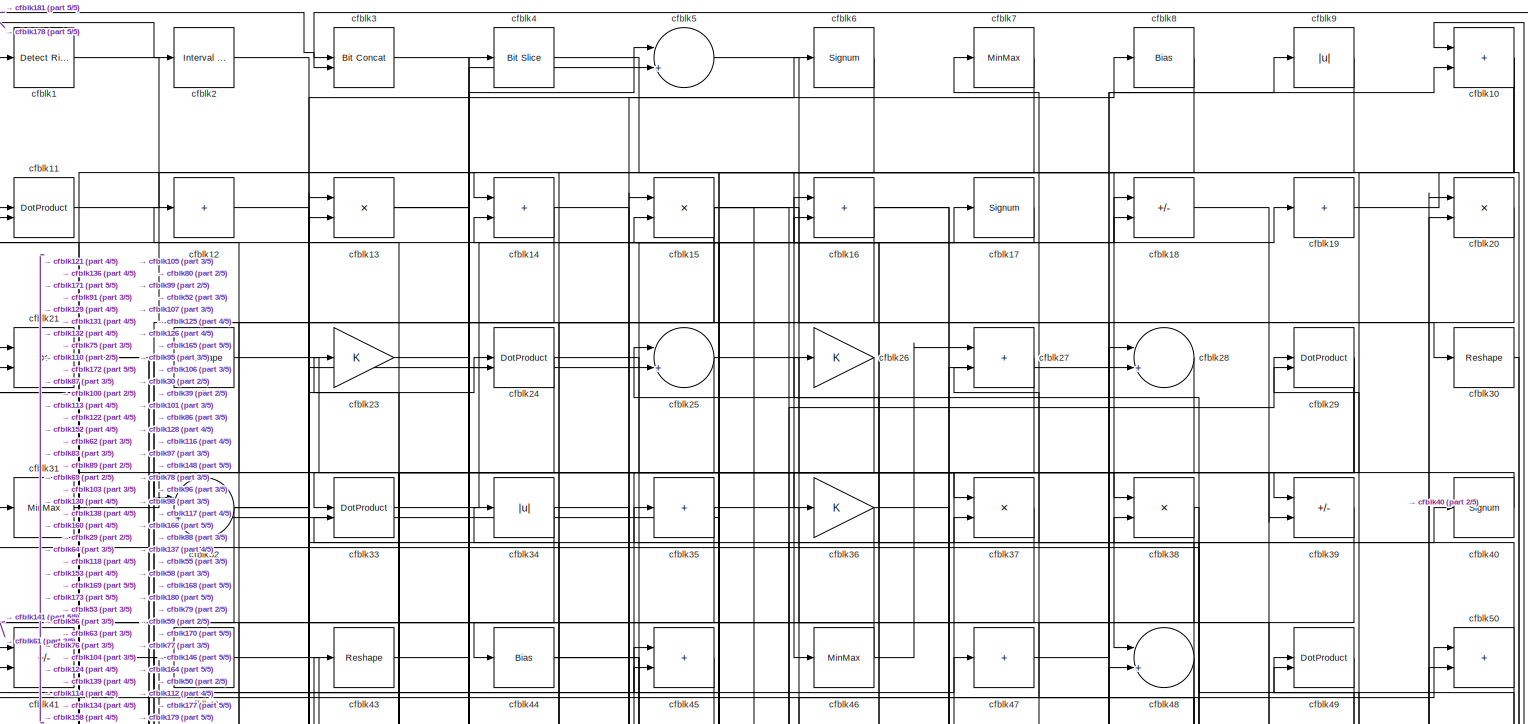
[diagram: root canvas - part 1/5, full width, top band]
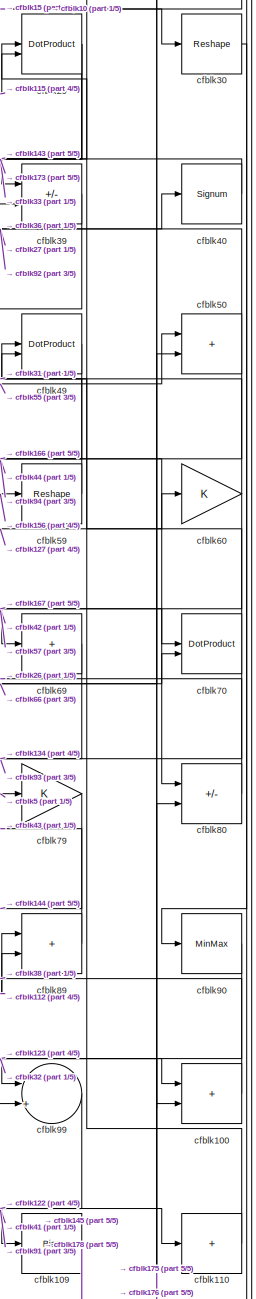
[diagram: root canvas - part 2/5, middle right region]
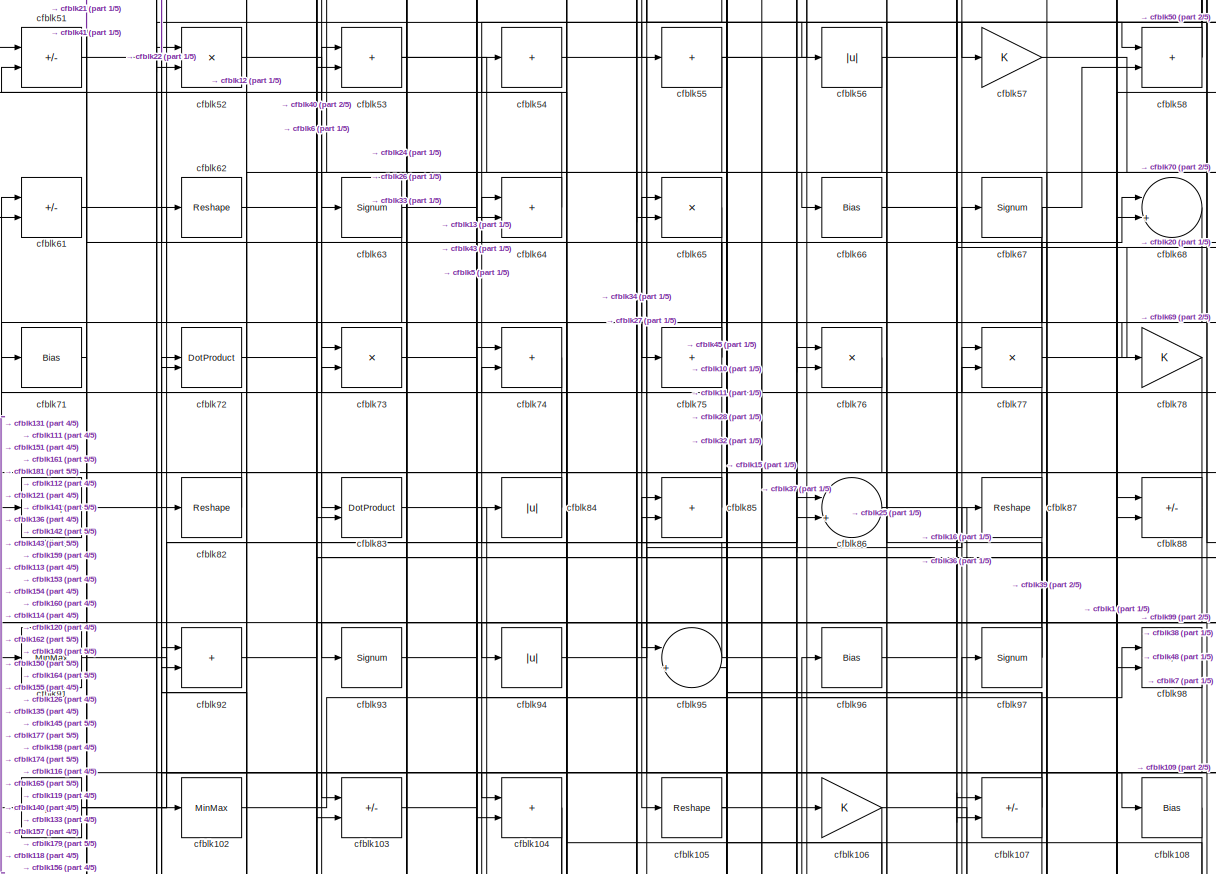
[diagram: root canvas - part 3/5, full width, middle band]
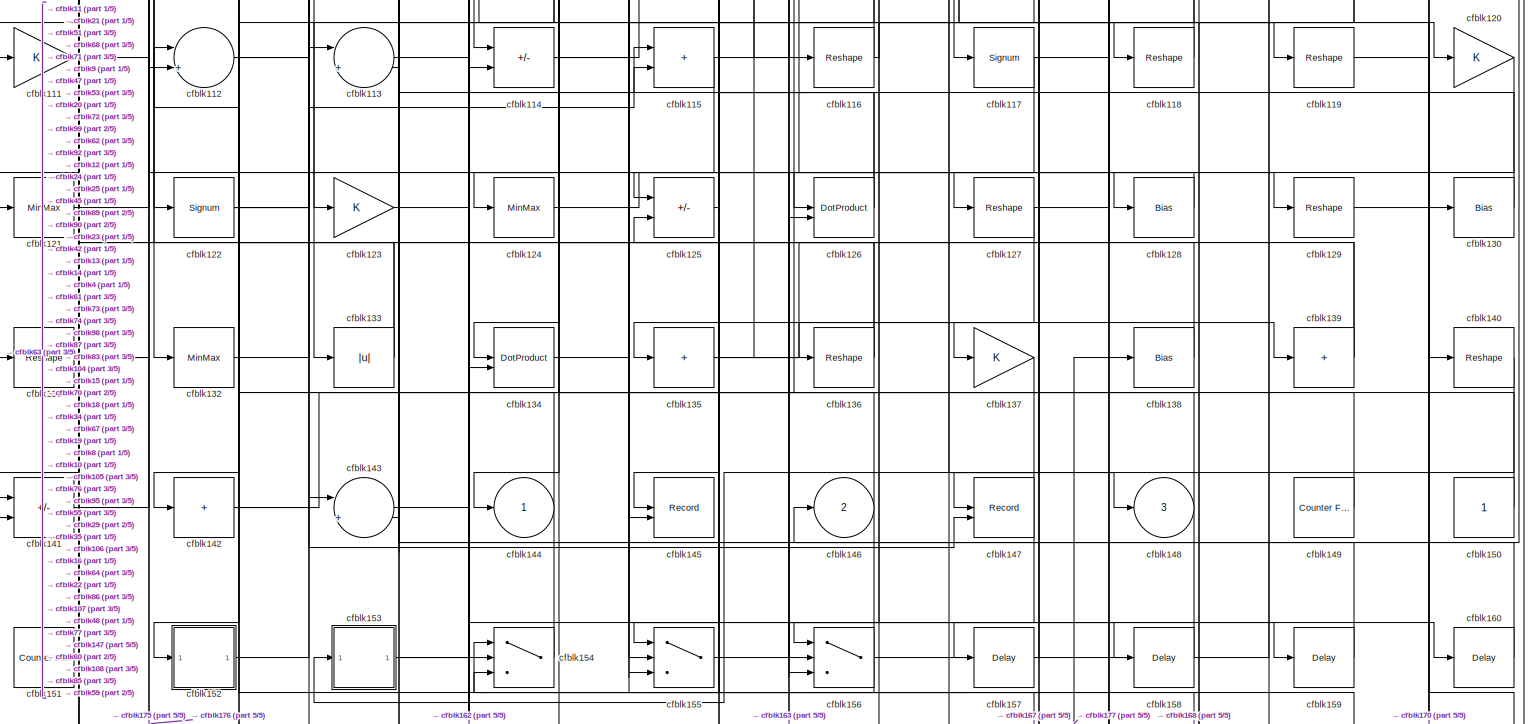
[diagram: root canvas - part 4/5, full width, bottom band]
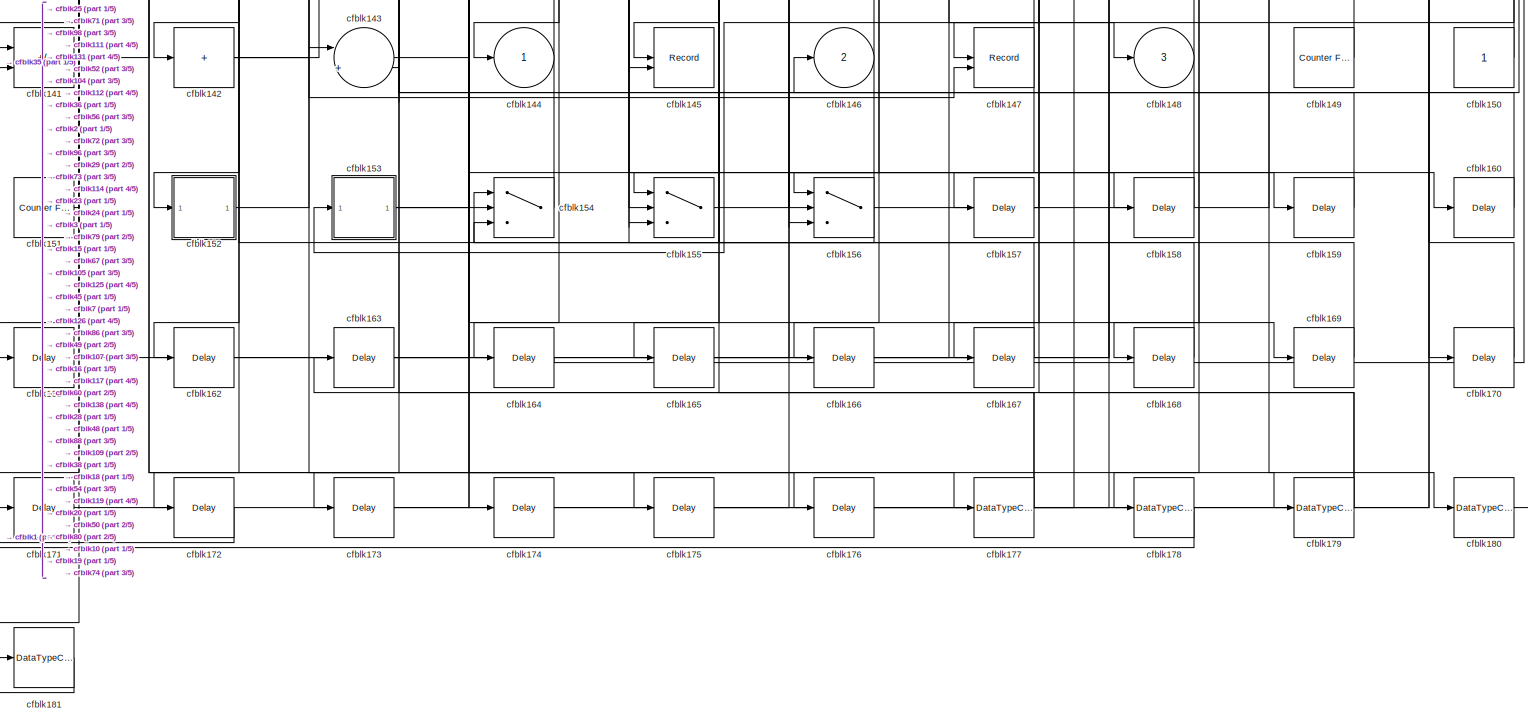
[diagram: root canvas - part 5/5, full width, bottom band]
MODEL slx_4ff851cc474c
KIND model
CONFIG AbsTol = auto
CONFIG EnableMultiTasking = off
CONFIG FixedStep = auto
CONFIG MaxStep = auto
CONFIG MinStep = auto
CONFIG RelTol = 1e-3
CONFIG SampleTimeConstraint = Unconstrained
CONFIG SolverName = VariableStepAuto
CONFIG StartTime = 0.0
CONFIG StopTime = 10.0
BLOCK [Reference] cfblk1  REF=hdlsllib/Logic and Bit
Operations/Detect Rise
Positive
  SourceBlock = hdlsllib/Logic and Bit\nOperations/Detect Rise\nPositive
  SourceType = Detect Rise Positive
BLOCK [Sum] cfblk10
  IconShape = rectangular
BLOCK [Sum] cfblk100
  IconShape = rectangular
BLOCK [Signum] cfblk101
BLOCK [MinMax] cfblk102
BLOCK [Sum] cfblk103
  IconShape = rectangular
  Inputs = +-
BLOCK [Sum] cfblk104
  IconShape = rectangular
BLOCK [Reshape] cfblk105
BLOCK [Gain] cfblk106
BLOCK [Sum] cfblk107
  IconShape = rectangular
  Inputs = +-
BLOCK [Bias] cfblk108
  Bias = 0.0
  SaturateOnIntegerOverflow = off
BLOCK [Bias] cfblk109
  Bias = 0.0
  SaturateOnIntegerOverflow = off
BLOCK [DotProduct] cfblk11
  OutDataTypeStr = Inherit: Inherit via internal rule
BLOCK [Sum] cfblk110
  IconShape = rectangular
  Inputs = +
BLOCK [Gain] cfblk111
BLOCK [Sum] cfblk112
  Inputs = |++
BLOCK [Sum] cfblk113
  Inputs = |++
BLOCK [Sum] cfblk114
  IconShape = rectangular
  Inputs = +-
BLOCK [Sum] cfblk115
  IconShape = rectangular
BLOCK [Reshape] cfblk116
BLOCK [Signum] cfblk117
BLOCK [Reshape] cfblk118
BLOCK [Reshape] cfblk119
BLOCK [Sum] cfblk12
  IconShape = rectangular
  Inputs = +
BLOCK [Gain] cfblk120
BLOCK [MinMax] cfblk121
BLOCK [Signum] cfblk122
BLOCK [Gain] cfblk123
BLOCK [MinMax] cfblk124
BLOCK [Sum] cfblk125
  IconShape = rectangular
  Inputs = +-
BLOCK [DotProduct] cfblk126
  OutDataTypeStr = Inherit: Inherit via internal rule
BLOCK [Reshape] cfblk127
BLOCK [Bias] cfblk128
  Bias = 0.0
  SaturateOnIntegerOverflow = off
BLOCK [Reshape] cfblk129
BLOCK [Product] cfblk13
  Inputs = */
  RndMeth = Zero
  SaturateOnIntegerOverflow = on
BLOCK [Bias] cfblk130
  Bias = 0.0
  SaturateOnIntegerOverflow = off
BLOCK [Reshape] cfblk131
BLOCK [MinMax] cfblk132
BLOCK [Abs] cfblk133
  SaturateOnIntegerOverflow = off
BLOCK [DotProduct] cfblk134
  OutDataTypeStr = Inherit: Inherit via internal rule
BLOCK [Sum] cfblk135
  IconShape = rectangular
  Inputs = +
BLOCK [Reshape] cfblk136
BLOCK [Gain] cfblk137
BLOCK [Bias] cfblk138
  Bias = 0.0
  SaturateOnIntegerOverflow = off
BLOCK [Sum] cfblk139
  IconShape = rectangular
  Inputs = +
BLOCK [Sum] cfblk14
  IconShape = rectangular
BLOCK [Reshape] cfblk140
BLOCK [Sum] cfblk141
  IconShape = rectangular
  Inputs = +-
BLOCK [Sum] cfblk142
  IconShape = rectangular
  Inputs = +
BLOCK [Sum] cfblk143
  Inputs = |++
BLOCK [Outport] cfblk144
  VectorParamsAs1DForOutWhenUnconnected = off
BLOCK [Record] cfblk145
  CompatibilityTag = XY
  FileSettingsInternal = {"entries":[{"content":{"excelSettings":{"content":{},"type":"Streamout.ExcelSettings"}},"type":"Streamout.FileSettingStorage","uuid":""}],"packageUris":["http:\/\/schema.mathworks.com\/mf0\/streamout_blocks\/R2020a"],"version":"1.0"}
  Layout = [1 1]
  SignalsInternal = {"entries":[{"content":{"signals":[{"content":{"blockPath":[],"dimensions":[1],"domain":"","lineColor":"#a2142f","plots":[1],"port":1,"sid":[""],"signalID":1758,"signalName":"cfblk105"},"type":"RecordBlkView.Signal","uuid":""},{"content":{"blockPath":[],"dimensions":[1],"domain":"","lineColor":"#139fff","plots":[1],"port":2,"sid":[""],"signalID":1762,"signalName":"cfblk109"},"type":"RecordBlkView....<+164ch>
  VisualizationBindings = {"xyplotplugin":{"info":[{"series":[{"bindingParametersList":[{"parameter":"X-Axis","signalID":1758,"signalName":"cfblk105"},{"parameter":"Y-Axis","signalID":1762,"signalName":"cfblk109"}],"seriesID":53148}],"subplotID":1}]}}
  st = -1
BLOCK [Outport] cfblk146
  Port = 2
  VectorParamsAs1DForOutWhenUnconnected = off
BLOCK [Record] cfblk147
  CompatibilityTag = XY
  FileSettingsInternal = {"entries":[{"content":{"excelSettings":{"content":{},"type":"Streamout.ExcelSettings"}},"type":"Streamout.FileSettingStorage","uuid":""}],"packageUris":["http:\/\/schema.mathworks.com\/mf0\/streamout_blocks\/R2020a"],"version":"1.0"}
  Layout = [1 1]
  SignalsInternal = {"entries":[{"content":{"signals":[{"content":{"blockPath":[],"dimensions":[1],"domain":"","lineColor":"#a2142f","plots":[1],"port":1,"sid":[""],"signalID":1766,"signalName":"cfblk117"},"type":"RecordBlkView.Signal","uuid":""},{"content":{"blockPath":[],"dimensions":[1],"domain":"","lineColor":"#139fff","plots":[1],"port":2,"sid":[""],"signalID":1770,"signalName":"cfblk142"},"type":"RecordBlkView....<+164ch>
  VisualizationBindings = {"xyplotplugin":{"info":[{"series":[{"bindingParametersList":[{"parameter":"X-Axis","signalID":1766,"signalName":"cfblk117"},{"parameter":"Y-Axis","signalID":1770,"signalName":"cfblk142"}],"seriesID":61315}],"subplotID":1}]}}
  st = -1
BLOCK [Outport] cfblk148
  Port = 3
  VectorParamsAs1DForOutWhenUnconnected = off
BLOCK [Reference] cfblk149  REF=hdlsllib/Sources/Counter
Free-Running
  SourceBlock = hdlsllib/Sources/Counter\nFree-Running
  SourceType = Counter Free-Running
BLOCK [Product] cfblk15
  Inputs = */
  RndMeth = Zero
  SaturateOnIntegerOverflow = on
BLOCK [Constant] cfblk150
  SampleTime = -1
BLOCK [Reference] cfblk151  REF=hdlsllib/Sources/Counter
Free-Running
  SourceBlock = hdlsllib/Sources/Counter\nFree-Running
  SourceType = Counter Free-Running
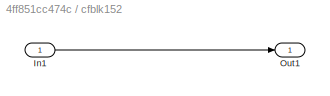
BLOCK [SubSystem] cfblk152
  LibrarySourceBlock = hdlsllib/Ports &\nSubsystems/Subsystem
BLOCK [Inport] cfblk152/In1
BLOCK [Outport] cfblk152/Out1
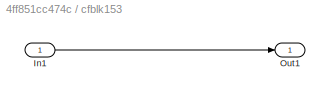
BLOCK [SubSystem] cfblk153
  LibrarySourceBlock = hdlsllib/Ports &\nSubsystems/Subsystem
BLOCK [Inport] cfblk153/In1
BLOCK [Outport] cfblk153/Out1
BLOCK [Switch] cfblk154
  InputSameDT = off
  SaturateOnIntegerOverflow = off
BLOCK [Switch] cfblk155
  InputSameDT = off
  SaturateOnIntegerOverflow = off
BLOCK [Switch] cfblk156
  InputSameDT = off
  SaturateOnIntegerOverflow = off
BLOCK [Delay] cfblk157
  InputPortMap = u0
  SampleTime = 1
BLOCK [Delay] cfblk158
  InputPortMap = u0
  SampleTime = 1
BLOCK [Delay] cfblk159
  InputPortMap = u0
  SampleTime = 1
BLOCK [Sum] cfblk16
  IconShape = rectangular
BLOCK [Delay] cfblk160
  InputPortMap = u0
  SampleTime = 1
BLOCK [Delay] cfblk161
  InputPortMap = u0
  SampleTime = 1
BLOCK [Delay] cfblk162
  InputPortMap = u0
  SampleTime = 1
BLOCK [Delay] cfblk163
  InputPortMap = u0
  SampleTime = 1
BLOCK [Delay] cfblk164
  InputPortMap = u0
  SampleTime = 1
BLOCK [Delay] cfblk165
  InputPortMap = u0
  SampleTime = 1
BLOCK [Delay] cfblk166
  InputPortMap = u0
  SampleTime = 1
BLOCK [Delay] cfblk167
  InputPortMap = u0
  SampleTime = 1
BLOCK [Delay] cfblk168
  InputPortMap = u0
  SampleTime = 1
BLOCK [Delay] cfblk169
  InputPortMap = u0
  SampleTime = 1
BLOCK [Signum] cfblk17
BLOCK [Delay] cfblk170
  InputPortMap = u0
  SampleTime = 1
BLOCK [Delay] cfblk171
  InputPortMap = u0
  SampleTime = 1
BLOCK [Delay] cfblk172
  InputPortMap = u0
  SampleTime = 1
BLOCK [Delay] cfblk173
  InputPortMap = u0
  SampleTime = 1
BLOCK [Delay] cfblk174
  InputPortMap = u0
  SampleTime = 1
BLOCK [Delay] cfblk175
  InputPortMap = u0
  SampleTime = 1
BLOCK [Delay] cfblk176
  InputPortMap = u0
  SampleTime = 1
BLOCK [DataTypeConversion] cfblk177
  RndMeth = Floor
  SaturateOnIntegerOverflow = off
BLOCK [DataTypeConversion] cfblk178
  OutDataTypeStr = uint8
  RndMeth = Floor
  SaturateOnIntegerOverflow = off
BLOCK [DataTypeConversion] cfblk179
  RndMeth = Floor
  SaturateOnIntegerOverflow = off
BLOCK [Sum] cfblk18
  IconShape = rectangular
  Inputs = +-
BLOCK [DataTypeConversion] cfblk180
  OutDataTypeStr = uint8
  RndMeth = Floor
  SaturateOnIntegerOverflow = off
BLOCK [DataTypeConversion] cfblk181
  OutDataTypeStr = uint8
  RndMeth = Floor
  SaturateOnIntegerOverflow = off
BLOCK [Sum] cfblk19
  IconShape = rectangular
  Inputs = +
BLOCK [Reference] cfblk2  REF=hdlsllib/Logic and Bit
Operations/Interval Test
  SourceBlock = hdlsllib/Logic and Bit\nOperations/Interval Test
  SourceType = Interval Test
BLOCK [Product] cfblk20
  Inputs = */
  RndMeth = Zero
  SaturateOnIntegerOverflow = on
BLOCK [Product] cfblk21
  Inputs = */
  RndMeth = Zero
  SaturateOnIntegerOverflow = on
BLOCK [Reshape] cfblk22
BLOCK [Gain] cfblk23
BLOCK [DotProduct] cfblk24
  OutDataTypeStr = Inherit: Inherit via internal rule
BLOCK [Sum] cfblk25
  Inputs = |++
BLOCK [Gain] cfblk26
BLOCK [Sum] cfblk27
  IconShape = rectangular
BLOCK [Sum] cfblk28
  Inputs = |++
BLOCK [DotProduct] cfblk29
  OutDataTypeStr = Inherit: Inherit via internal rule
BLOCK [Reference] cfblk3  REF=hdlsllib/Logic and Bit
Operations/Bit Concat
  SourceBlock = hdlsllib/Logic and Bit\nOperations/Bit Concat
  SourceType = Bit Concat
BLOCK [Reshape] cfblk30
BLOCK [MinMax] cfblk31
BLOCK [Sum] cfblk32
  Inputs = |++
BLOCK [DotProduct] cfblk33
  OutDataTypeStr = Inherit: Inherit via internal rule
BLOCK [Abs] cfblk34
  SaturateOnIntegerOverflow = off
BLOCK [Sum] cfblk35
  IconShape = rectangular
  Inputs = +
BLOCK [Gain] cfblk36
BLOCK [Product] cfblk37
  Inputs = */
  RndMeth = Zero
  SaturateOnIntegerOverflow = on
BLOCK [Product] cfblk38
  Inputs = */
  RndMeth = Zero
  SaturateOnIntegerOverflow = on
BLOCK [Sum] cfblk39
  IconShape = rectangular
  Inputs = +-
BLOCK [Reference] cfblk4  REF=hdlsllib/Logic and Bit
Operations/Bit Slice
  SourceBlock = hdlsllib/Logic and Bit\nOperations/Bit Slice
  SourceType = Bit Slice
BLOCK [Signum] cfblk40
BLOCK [Sum] cfblk41
  IconShape = rectangular
  Inputs = +-
BLOCK [Sum] cfblk42
  IconShape = rectangular
  Inputs = +
BLOCK [Reshape] cfblk43
BLOCK [Bias] cfblk44
  Bias = 0.0
  SaturateOnIntegerOverflow = off
BLOCK [Sum] cfblk45
  IconShape = rectangular
BLOCK [MinMax] cfblk46
BLOCK [Sum] cfblk47
  IconShape = rectangular
  Inputs = +
BLOCK [Sum] cfblk48
  Inputs = |++
BLOCK [DotProduct] cfblk49
  OutDataTypeStr = Inherit: Inherit via internal rule
BLOCK [Sum] cfblk5
  Inputs = |++
BLOCK [Sum] cfblk50
  IconShape = rectangular
BLOCK [Sum] cfblk51
  IconShape = rectangular
  Inputs = +-
BLOCK [Product] cfblk52
  Inputs = */
  RndMeth = Zero
  SaturateOnIntegerOverflow = on
BLOCK [Sum] cfblk53
  IconShape = rectangular
BLOCK [Sum] cfblk54
  IconShape = rectangular
  Inputs = +
BLOCK [Sum] cfblk55
  IconShape = rectangular
  Inputs = +
BLOCK [Abs] cfblk56
  SaturateOnIntegerOverflow = off
BLOCK [Gain] cfblk57
BLOCK [Sum] cfblk58
  IconShape = rectangular
BLOCK [Reshape] cfblk59
BLOCK [Signum] cfblk6
BLOCK [Gain] cfblk60
BLOCK [Sum] cfblk61
  IconShape = rectangular
  Inputs = +-
BLOCK [Reshape] cfblk62
BLOCK [Signum] cfblk63
BLOCK [Sum] cfblk64
  IconShape = rectangular
BLOCK [Product] cfblk65
  Inputs = */
  RndMeth = Zero
  SaturateOnIntegerOverflow = on
BLOCK [Bias] cfblk66
  Bias = 0.0
  SaturateOnIntegerOverflow = off
BLOCK [Signum] cfblk67
BLOCK [Sum] cfblk68
  Inputs = |++
BLOCK [Sum] cfblk69
  IconShape = rectangular
  Inputs = +
BLOCK [MinMax] cfblk7
BLOCK [DotProduct] cfblk70
  OutDataTypeStr = Inherit: Inherit via internal rule
BLOCK [Bias] cfblk71
  Bias = 0.0
  SaturateOnIntegerOverflow = off
BLOCK [DotProduct] cfblk72
  OutDataTypeStr = Inherit: Inherit via internal rule
BLOCK [Product] cfblk73
  Inputs = */
  RndMeth = Zero
  SaturateOnIntegerOverflow = on
BLOCK [Sum] cfblk74
  IconShape = rectangular
BLOCK [Sum] cfblk75
  IconShape = rectangular
  Inputs = +
BLOCK [Product] cfblk76
  Inputs = */
  RndMeth = Zero
  SaturateOnIntegerOverflow = on
BLOCK [Product] cfblk77
  Inputs = */
  RndMeth = Zero
  SaturateOnIntegerOverflow = on
BLOCK [Gain] cfblk78
BLOCK [Gain] cfblk79
BLOCK [Bias] cfblk8
  Bias = 0.0
  SaturateOnIntegerOverflow = off
BLOCK [Sum] cfblk80
  IconShape = rectangular
  Inputs = +-
BLOCK [Reshape] cfblk81
BLOCK [Reshape] cfblk82
BLOCK [DotProduct] cfblk83
  OutDataTypeStr = Inherit: Inherit via internal rule
BLOCK [Abs] cfblk84
  SaturateOnIntegerOverflow = off
BLOCK [Sum] cfblk85
  IconShape = rectangular
BLOCK [Sum] cfblk86
  Inputs = |++
BLOCK [Reshape] cfblk87
BLOCK [Sum] cfblk88
  IconShape = rectangular
  Inputs = +-
BLOCK [Sum] cfblk89
  IconShape = rectangular
BLOCK [Abs] cfblk9
  SaturateOnIntegerOverflow = off
BLOCK [MinMax] cfblk90
BLOCK [MinMax] cfblk91
BLOCK [Sum] cfblk92
  IconShape = rectangular
BLOCK [Signum] cfblk93
BLOCK [Abs] cfblk94
  SaturateOnIntegerOverflow = off
BLOCK [Sum] cfblk95
  Inputs = |++
BLOCK [Bias] cfblk96
  Bias = 0.0
  SaturateOnIntegerOverflow = off
BLOCK [Signum] cfblk97
BLOCK [Sum] cfblk98
  IconShape = rectangular
  Inputs = +-
BLOCK [Sum] cfblk99
  Inputs = |++
LINE cfblk100:1 -> cfblk38:2
NET cfblk101:1 -> cfblk37:2, cfblk77:1
LINE cfblk102:1 -> cfblk97:1
LINE cfblk103:1 -> cfblk68:1
NET cfblk104:1 -> cfblk113:2, cfblk162:1
NET cfblk105:1 -> cfblk116:1, cfblk145:1
NET cfblk106:1 -> cfblk119:1, cfblk155:2
NET cfblk107:1 -> cfblk11:2, cfblk133:1, cfblk32:2
LINE cfblk108:1 -> cfblk156:1
NET cfblk109:1 -> cfblk145:2, cfblk178:1
NET cfblk10:1 -> cfblk104:1, cfblk125:1, cfblk39:1
LINE cfblk110:1 -> cfblk49:1
LINE cfblk111:1 -> cfblk175:1
NET cfblk112:1 -> cfblk13:2, cfblk89:2
LINE cfblk113:1 -> cfblk74:1
NET cfblk114:1 -> cfblk19:1, cfblk8:1
NET cfblk115:1 -> cfblk152:1, cfblk29:1
NET cfblk116:1 -> cfblk16:2, cfblk64:1
NET cfblk117:1 -> cfblk10:2, cfblk147:1, cfblk156:3
LINE cfblk118:1 -> cfblk85:1
LINE cfblk119:1 -> cfblk170:1
LINE cfblk11:1 -> cfblk14:1
LINE cfblk120:1 -> cfblk155:1
LINE cfblk121:1 -> cfblk53:1
NET cfblk122:1 -> cfblk115:2, cfblk45:1, cfblk89:1
LINE cfblk123:1 -> cfblk115:1
LINE cfblk124:1 -> cfblk126:1
LINE cfblk125:1 -> cfblk15:2
NET cfblk126:1 -> cfblk35:1, cfblk95:2
NET cfblk127:1 -> cfblk154:1, cfblk60:1
LINE cfblk128:1 -> cfblk127:1
LINE cfblk129:1 -> cfblk130:1
LINE cfblk12:1 -> cfblk113:1
LINE cfblk130:1 -> cfblk42:1
NET cfblk131:1 -> cfblk176:1, cfblk47:1
LINE cfblk132:1 -> cfblk24:1
NET cfblk133:1 -> cfblk51:2, cfblk92:1
LINE cfblk134:1 -> cfblk18:1
NET cfblk135:1 -> cfblk139:1, cfblk68:2
NET cfblk136:1 -> cfblk11:1, cfblk72:1
LINE cfblk137:1 -> cfblk157:1
LINE cfblk138:1 -> cfblk23:1
NET cfblk139:1 -> cfblk21:2, cfblk34:1
NET cfblk13:1 -> cfblk118:1, cfblk76:2
LINE cfblk140:1 -> cfblk153:1
LINE cfblk141:1 -> cfblk52:1
NET cfblk142:1 -> cfblk147:2, cfblk96:1
LINE cfblk143:1 -> cfblk174:1
LINE cfblk149:1 -> cfblk54:1
NET cfblk14:1 -> cfblk134:2, cfblk18:2
LINE cfblk150:1 -> cfblk74:2
LINE cfblk151:1 -> cfblk71:1
LINE cfblk152/In1:1 -> cfblk152/Out1:1
LINE cfblk152:1 -> cfblk25:2
LINE cfblk153/In1:1 -> cfblk153/Out1:1
NET cfblk153:1 -> cfblk4:1, cfblk98:1
LINE cfblk154:1 -> cfblk62:1
LINE cfblk155:1 -> cfblk159:1
NET cfblk156:1 -> cfblk154:3, cfblk59:1, cfblk92:2
LINE cfblk157:1 -> cfblk77:2
LINE cfblk158:1 -> cfblk76:1
LINE cfblk159:1 -> cfblk51:1
NET cfblk15:1 -> cfblk106:1, cfblk124:1, cfblk30:1, cfblk32:1, cfblk39:2
LINE cfblk160:1 -> cfblk13:1
LINE cfblk161:1 -> cfblk88:2
LINE cfblk162:1 -> cfblk114:2
LINE cfblk163:1 -> cfblk126:2
LINE cfblk164:1 -> cfblk10:1
LINE cfblk165:1 -> cfblk107:1
LINE cfblk166:1 -> cfblk28:1
LINE cfblk167:1 -> cfblk125:2
LINE cfblk168:1 -> cfblk112:1
LINE cfblk169:1 -> cfblk15:1
NET cfblk16:1 -> cfblk148:1, cfblk53:2, cfblk78:1
LINE cfblk170:1 -> cfblk20:1
LINE cfblk171:1 -> cfblk48:2
LINE cfblk172:1 -> cfblk1:1
LINE cfblk173:1 -> cfblk24:2
LINE cfblk174:1 -> cfblk86:1
LINE cfblk175:1 -> cfblk80:2
LINE cfblk176:1 -> cfblk50:2
NET cfblk177:1 -> cfblk138:1, cfblk45:2, cfblk73:2
LINE cfblk178:1 -> cfblk2:1
NET cfblk179:1 -> cfblk163:1, cfblk67:1
LINE cfblk17:1 -> cfblk14:2
LINE cfblk180:1 -> cfblk3:1
LINE cfblk181:1 -> cfblk3:2
LINE cfblk18:1 -> cfblk180:1
LINE cfblk19:1 -> cfblk146:1
LINE cfblk1:1 -> cfblk88:1
LINE cfblk20:1 -> cfblk132:1
NET cfblk21:1 -> cfblk103:2, cfblk129:1
LINE cfblk22:1 -> cfblk117:1
LINE cfblk23:1 -> cfblk169:1
NET cfblk24:1 -> cfblk103:1, cfblk86:2
NET cfblk25:1 -> cfblk171:1, cfblk37:1
LINE cfblk26:1 -> cfblk63:1
LINE cfblk27:1 -> cfblk105:1
LINE cfblk28:1 -> cfblk75:1
NET cfblk29:1 -> cfblk143:2, cfblk173:1, cfblk36:1
LINE cfblk2:1 -> cfblk177:1
LINE cfblk30:1 -> cfblk90:1
LINE cfblk31:1 -> cfblk38:1
NET cfblk32:1 -> cfblk100:1, cfblk100:2, cfblk61:2
LINE cfblk33:1 -> cfblk17:1
NET cfblk34:1 -> cfblk158:1, cfblk83:2
NET cfblk35:1 -> cfblk128:1, cfblk141:2
NET cfblk36:1 -> cfblk172:1, cfblk98:2
LINE cfblk37:1 -> cfblk95:1
NET cfblk38:1 -> cfblk168:1, cfblk91:1
LINE cfblk39:1 -> cfblk57:1
LINE cfblk3:1 -> cfblk179:1
LINE cfblk40:1 -> cfblk33:1
LINE cfblk41:1 -> cfblk110:1
LINE cfblk42:1 -> cfblk69:1
LINE cfblk43:1 -> cfblk56:1
NET cfblk44:1 -> cfblk80:1, cfblk99:2
LINE cfblk45:1 -> cfblk52:2
NET cfblk46:1 -> cfblk27:1, cfblk44:1
LINE cfblk47:1 -> cfblk9:1
NET cfblk48:1 -> cfblk137:1, cfblk16:1, cfblk55:1
LINE cfblk49:1 -> cfblk166:1
LINE cfblk4:1 -> cfblk48:1
NET cfblk50:1 -> cfblk27:2, cfblk94:1
LINE cfblk51:1 -> cfblk112:2
LINE cfblk52:1 -> cfblk73:1
NET cfblk53:1 -> cfblk5:2, cfblk66:1
LINE cfblk54:1 -> cfblk108:1
NET cfblk55:1 -> cfblk136:1, cfblk50:1, cfblk65:2
NET cfblk56:1 -> cfblk142:1, cfblk58:1
LINE cfblk57:1 -> cfblk70:1
NET cfblk58:1 -> cfblk41:1, cfblk7:1
LINE cfblk59:1 -> cfblk31:1
LINE cfblk5:1 -> cfblk79:1
NET cfblk60:1 -> cfblk167:1, cfblk49:2
LINE cfblk61:1 -> cfblk154:2
LINE cfblk62:1 -> cfblk6:1
NET cfblk63:1 -> cfblk131:1, cfblk5:1
LINE cfblk64:1 -> cfblk33:2
LINE cfblk65:1 -> cfblk83:1
NET cfblk66:1 -> cfblk107:2, cfblk70:2
NET cfblk67:1 -> cfblk155:3, cfblk164:1, cfblk58:2
LINE cfblk68:1 -> cfblk111:1
LINE cfblk69:1 -> cfblk93:1
LINE cfblk6:1 -> cfblk64:2
NET cfblk70:1 -> cfblk134:1, cfblk29:2
LINE cfblk71:1 -> cfblk141:1
LINE cfblk72:1 -> cfblk143:1
LINE cfblk73:1 -> cfblk160:1
LINE cfblk74:1 -> cfblk161:1
NET cfblk75:1 -> cfblk22:1, cfblk41:2
LINE cfblk76:1 -> cfblk135:1
NET cfblk77:1 -> cfblk102:1, cfblk20:2, cfblk21:1
LINE cfblk78:1 -> cfblk104:2
LINE cfblk79:1 -> cfblk144:1
LINE cfblk7:1 -> cfblk165:1
LINE cfblk80:1 -> cfblk26:1
LINE cfblk81:1 -> cfblk82:1
LINE cfblk82:1 -> cfblk72:2
LINE cfblk83:1 -> cfblk120:1
LINE cfblk84:1 -> cfblk61:1
LINE cfblk85:1 -> cfblk65:1
LINE cfblk86:1 -> cfblk140:1
NET cfblk87:1 -> cfblk114:1, cfblk12:1
NET cfblk88:1 -> cfblk101:1, cfblk81:1
LINE cfblk89:1 -> cfblk43:1
LINE cfblk8:1 -> cfblk46:1
LINE cfblk90:1 -> cfblk123:1
LINE cfblk91:1 -> cfblk109:1
LINE cfblk92:1 -> cfblk40:1
LINE cfblk93:1 -> cfblk99:1
LINE cfblk94:1 -> cfblk87:1
NET cfblk95:1 -> cfblk156:2, cfblk84:1
LINE cfblk96:1 -> cfblk28:2
NET cfblk97:1 -> cfblk25:1, cfblk85:2
LINE cfblk98:1 -> cfblk181:1
LINE cfblk99:1 -> cfblk122:1
LINE cfblk9:1 -> cfblk121:1
note: NET lines group one-source signal fan-out (src -> all destinations, sorted); 1:1 wires keep LINE
